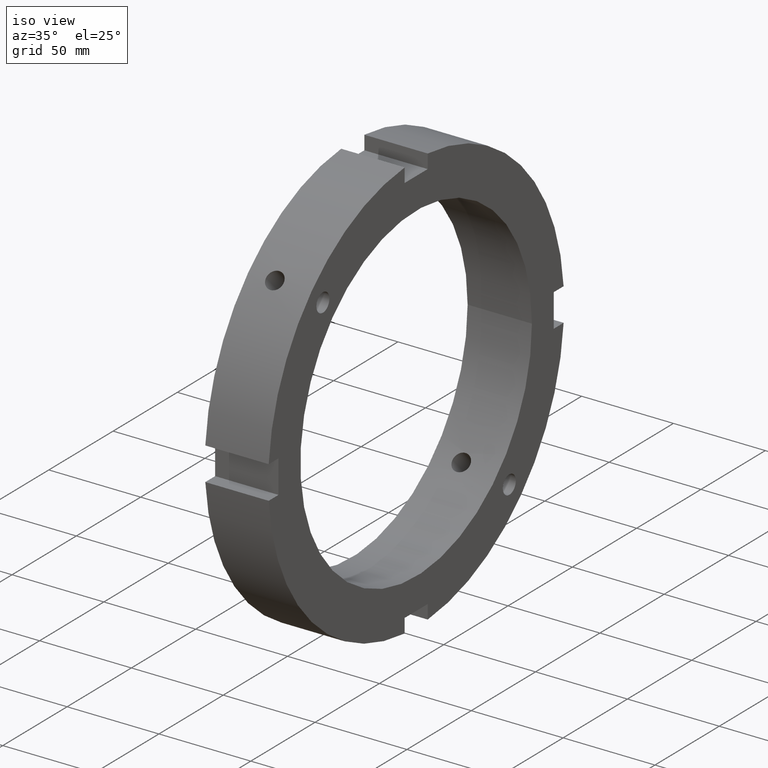
[diagram: clean part render]
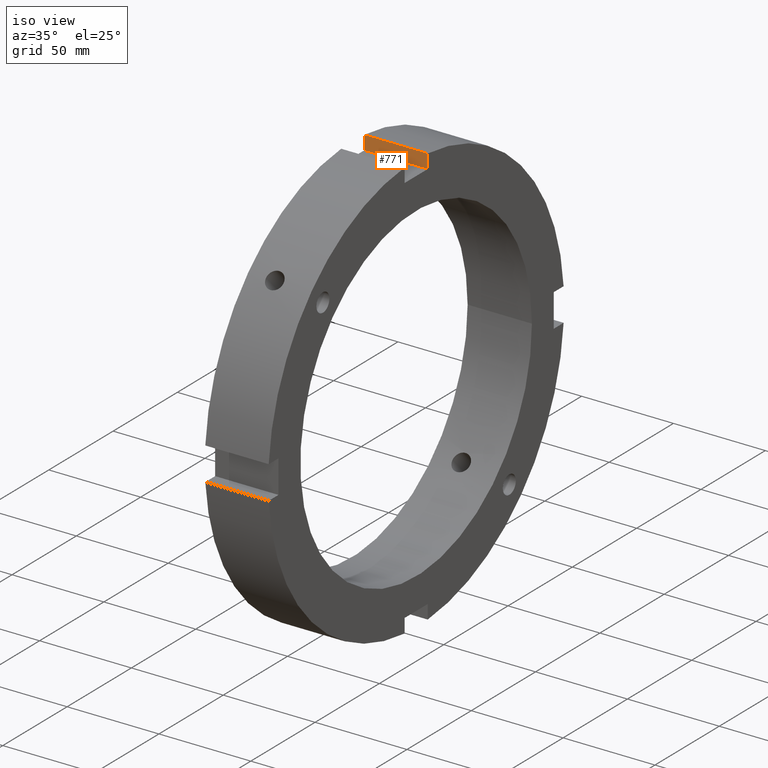
[diagram: same view with one face highlighted and labeled with its STEP entity id]
A machine part, iso view. The second image highlights one B-rep face of the part: STEP entity #771.
In plain terms, the highlighted planar face has unit normal (0, 1, 0).
Its self-contained STEP definition (entity closure, byte-faithful):
#732=CARTESIAN_POINT('',(34.999999999999972,9.000000000000002,107.0));
#733=DIRECTION('',(0.0,1.0,0.0));
#734=DIRECTION('',(-1.0,0.0,0.0));
#735=AXIS2_PLACEMENT_3D('',#732,#733,#734);
#736=PLANE('',#735);
#737=CARTESIAN_POINT('',(0.499999999999972,9.000000000000002,107.0));
#738=VERTEX_POINT('',#737);
#739=CARTESIAN_POINT('',(0.499999999999967,9.0,114.64728518373209));
#740=VERTEX_POINT('',#739);
#741=CARTESIAN_POINT('',(0.499999999999969,9.0,107.0));
#742=DIRECTION('',(0.0,0.0,1.0));
#743=VECTOR('',#742,7.647285183732109);
#744=LINE('',#741,#743);
#745=EDGE_CURVE('',#738,#740,#744,.T.);
#746=ORIENTED_EDGE('',*,*,#745,.F.);
#747=CARTESIAN_POINT('',(34.999999999999972,9.000000000000002,107.0));
#748=VERTEX_POINT('',#747);
#749=CARTESIAN_POINT('',(34.999999999999972,9.000000000000002,107.0));
#750=DIRECTION('',(-1.0,0.0,0.0));
#751=VECTOR('',#750,34.5);
#752=LINE('',#749,#751);
#753=EDGE_CURVE('',#748,#738,#752,.T.);
#754=ORIENTED_EDGE('',*,*,#753,.F.);
#755=CARTESIAN_POINT('',(34.999999999999972,9.0,114.64728518373209));
#756=VERTEX_POINT('',#755);
#757=CARTESIAN_POINT('',(34.999999999999972,8.999999999999998,114.64728518373211));
#758=DIRECTION('',(0.0,0.0,-1.0));
#759=VECTOR('',#758,7.647285183732109);
#760=LINE('',#757,#759);
#761=EDGE_CURVE('',#756,#748,#760,.T.);
#762=ORIENTED_EDGE('',*,*,#761,.F.);
#763=CARTESIAN_POINT('',(0.499999999999968,9.000000000000002,114.64728518373209));
#764=DIRECTION('',(1.0,0.0,0.0));
#765=VECTOR('',#764,34.5);
#766=LINE('',#763,#765);
#767=EDGE_CURVE('',#740,#756,#766,.T.);
#768=ORIENTED_EDGE('',*,*,#767,.F.);
#769=EDGE_LOOP('',(#746,#754,#762,#768));
#770=FACE_OUTER_BOUND('',#769,.T.);
#771=ADVANCED_FACE('',(#770),#736,.F.);